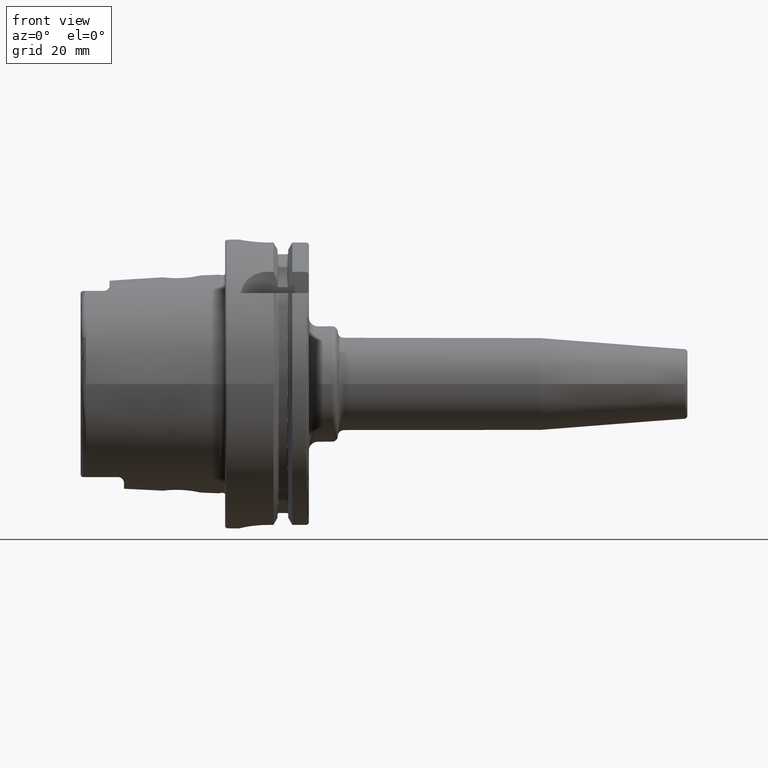
[diagram: clean part render]
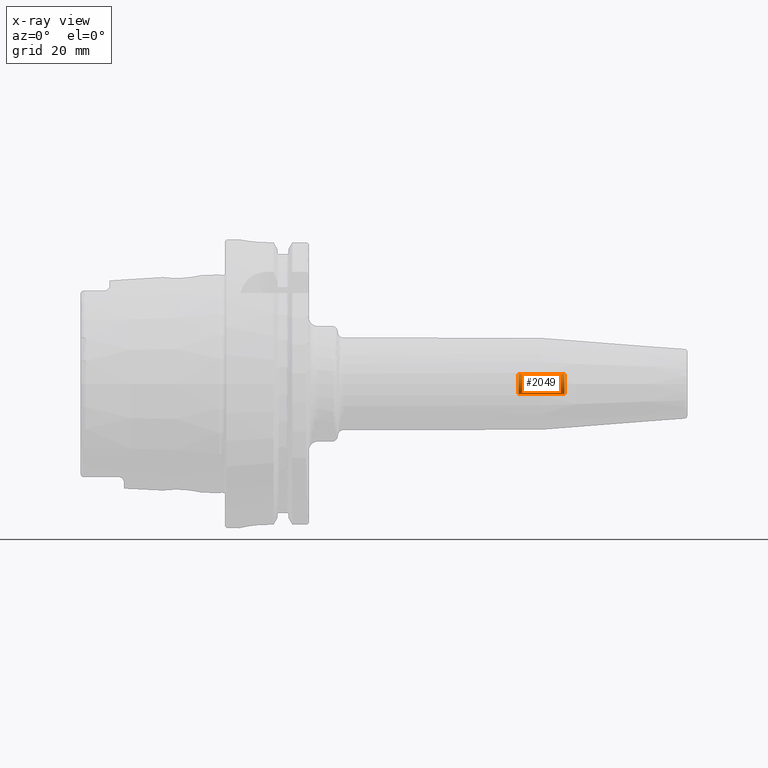
[diagram: x-ray — body ghosted, one internal face saturated and labeled with its STEP entity id]
A machine part, front view, then the same camera in x-ray: the body is ghosted and one INTERNAL B-rep face — a face not visible from any outside direction — is saturated and labeled: STEP entity #2049.
In plain terms, the highlighted cylindrical surface (bore or boss wall) has radius 3.4585 mm, axis along (1, 0, 0).
Its self-contained STEP definition (entity closure, byte-faithful):
#179=CYLINDRICAL_SURFACE('',#2223,3.4585);
#227=FACE_OUTER_BOUND('',#354,.T.);
#354=EDGE_LOOP('',(#1441,#1442,#1443,#1444,#1445));
#487=LINE('',#3200,#595);
#595=VECTOR('',#2559,3.4585);
#713=CIRCLE('',#2224,3.4585);
#714=CIRCLE('',#2225,3.4585);
#715=CIRCLE('',#2226,3.4585);
#860=VERTEX_POINT('',#3197);
#861=VERTEX_POINT('',#3199);
#862=VERTEX_POINT('',#3201);
#1083=EDGE_CURVE('',#860,#860,#713,.T.);
#1084=EDGE_CURVE('',#860,#861,#487,.T.);
#1085=EDGE_CURVE('',#862,#861,#714,.T.);
#1086=EDGE_CURVE('',#861,#862,#715,.T.);
#1441=ORIENTED_EDGE('',*,*,#1083,.F.);
#1442=ORIENTED_EDGE('',*,*,#1084,.T.);
#1443=ORIENTED_EDGE('',*,*,#1085,.F.);
#1444=ORIENTED_EDGE('',*,*,#1086,.F.);
#1445=ORIENTED_EDGE('',*,*,#1084,.F.);
#2049=ADVANCED_FACE('',(#227),#179,.F.);
#2223=AXIS2_PLACEMENT_3D('',#3196,#2555,#2556);
#2224=AXIS2_PLACEMENT_3D('',#3198,#2557,#2558);
#2225=AXIS2_PLACEMENT_3D('',#3202,#2560,#2561);
#2226=AXIS2_PLACEMENT_3D('',#3203,#2562,#2563);
#2555=DIRECTION('center_axis',(1.,0.,0.));
#2556=DIRECTION('ref_axis',(0.,0.,-1.));
#2557=DIRECTION('center_axis',(-1.,0.,0.));
#2558=DIRECTION('ref_axis',(0.,0.,-1.));
#2559=DIRECTION('',(-1.,0.,0.));
#2560=DIRECTION('center_axis',(1.,0.,0.));
#2561=DIRECTION('ref_axis',(0.,0.,-1.));
#2562=DIRECTION('center_axis',(1.,0.,0.));
#2563=DIRECTION('ref_axis',(0.,0.,-1.));
#3196=CARTESIAN_POINT('Origin',(-135.68284303171,0.,0.));
#3197=CARTESIAN_POINT('',(117.5,-4.23544095485112E-16,3.4585));
#3198=CARTESIAN_POINT('Origin',(117.5,0.,0.));
#3199=CARTESIAN_POINT('',(101.527087263259,-4.23544095485112E-16,3.4585));
#3200=CARTESIAN_POINT('',(-135.68284303171,-4.23544095485112E-16,3.4585));
#3201=CARTESIAN_POINT('',(101.527087263259,-5.61755492841503E-17,-3.4585));
#3202=CARTESIAN_POINT('Origin',(101.527087263259,0.,0.));
#3203=CARTESIAN_POINT('Origin',(101.527087263259,0.,0.));